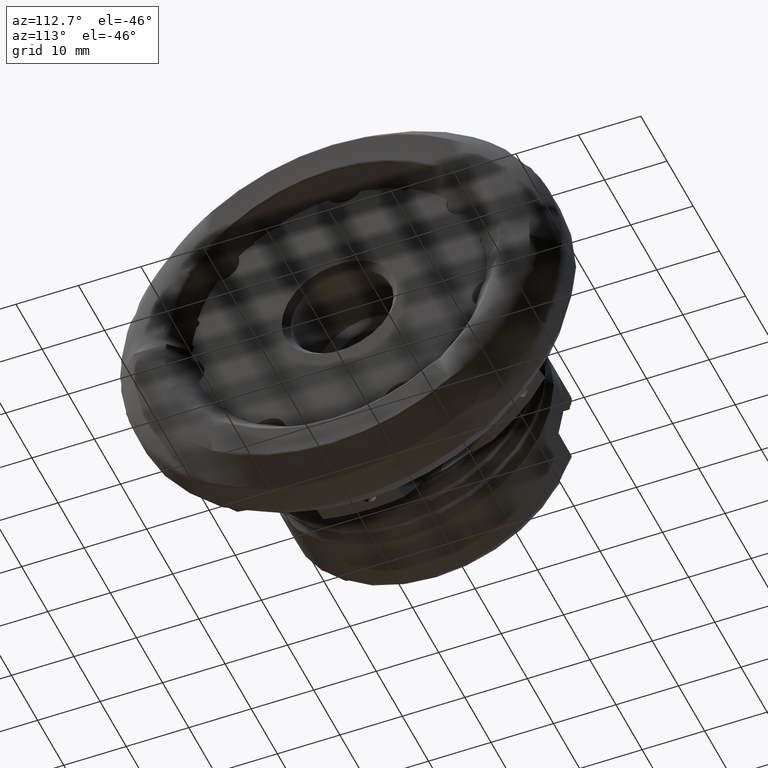
[diagram: clean part render]
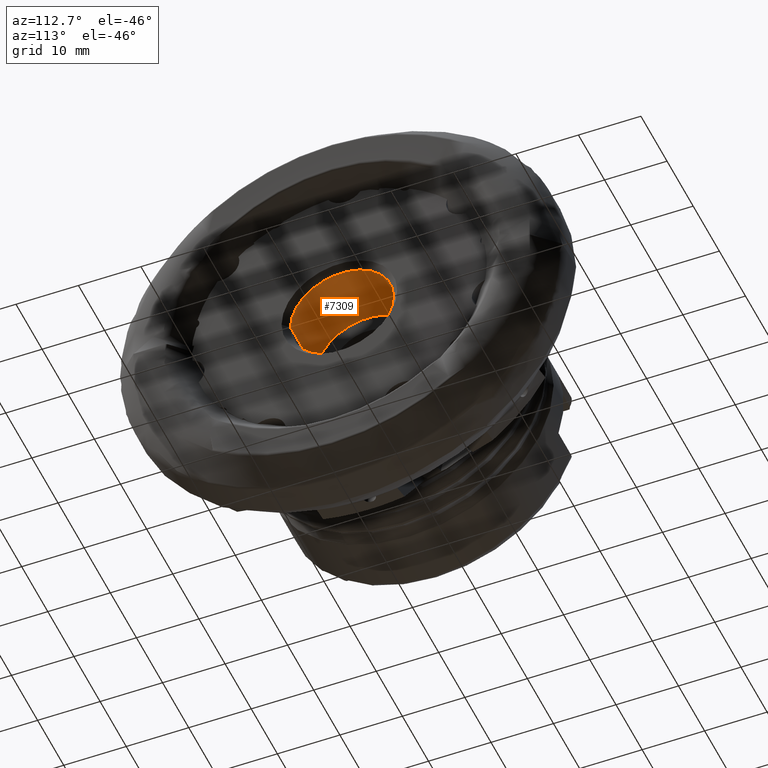
[diagram: same view with one face highlighted and labeled with its STEP entity id]
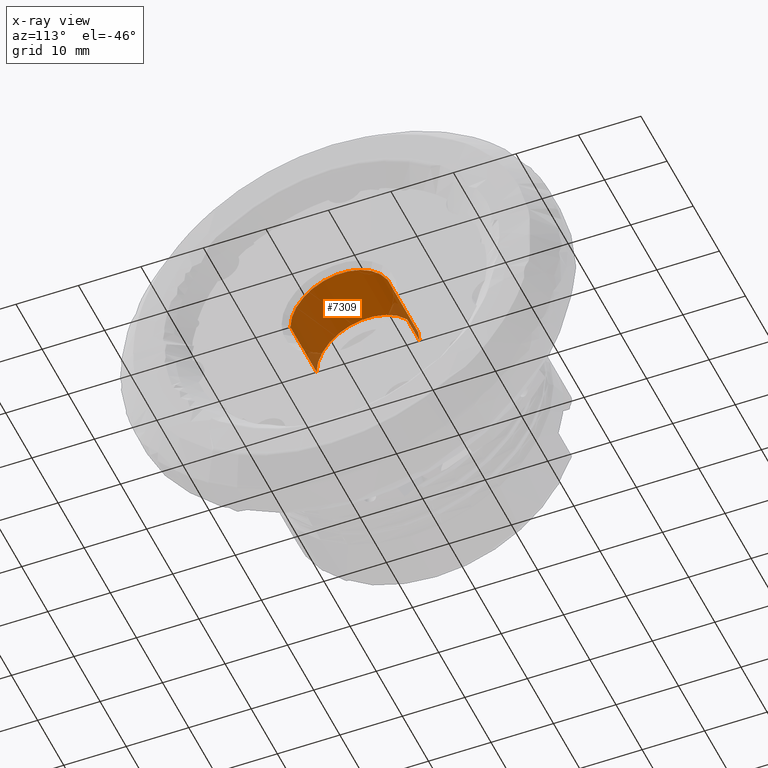
[diagram: x-ray of the same camera — body ghosted, the highlighted face saturated]
A machine part, auxiliary view. The second image highlights one B-rep face of the part: STEP entity #7309.
The next image is the same camera in x-ray: the body ghosted, the highlighted face saturated — about 6% of this face is hidden behind the body in this view.
In plain terms, the highlighted cylindrical surface (partial cylindrical patch) has radius 8.25 mm, axis along (1, 0, -0).
Its self-contained STEP definition (entity closure, byte-faithful):
#322 = CYLINDRICAL_SURFACE ( 'NONE', #4939, 8.250000000000000000 ) ;
#769 = EDGE_CURVE ( 'Kante60', #7443, #6157, #840, .T. ) ;
#840 = CIRCLE ( 'NONE', #11418, 8.250000000000000000 ) ;
#2269 = EDGE_CURVE ( 'Kante13', #7914, #11326, #2501, .T. ) ;
#2422 = EDGE_CURVE ( 'NONE', #11326, #6157, #3287, .T. ) ;
#2480 = EDGE_LOOP ( 'NONE', ( #9847, #9303, #6027, #4456 ) ) ;
#2501 = CIRCLE ( 'NONE', #7041, 8.250000000000000000 ) ;
#2941 = CARTESIAN_POINT ( 'NONE',  ( -3.000000000000000000, 8.250000000000000000, 0.0000000000000000000 ) ) ;
#2981 = DIRECTION ( 'NONE',  ( 1.000000000000000000, 1.653279061886031000E-016, -0.0000000000000000000 ) ) ;
#3287 = LINE ( 'NONE', #6094, #10955 ) ;
#3786 = DIRECTION ( 'NONE',  ( 1.000000000000000000, 1.653279061886031000E-016, -0.0000000000000000000 ) ) ;
#4021 = DIRECTION ( 'NONE',  ( 1.000000000000000000, 1.653279061886031000E-016, -0.0000000000000000000 ) ) ;
#4456 = ORIENTED_EDGE ( 'NONE', *, *, #769, .T. ) ;
#4636 = LINE ( 'NONE', #10783, #10264 ) ;
#4939 = AXIS2_PLACEMENT_3D ( 'NONE', #11675, #8718, #12689 ) ;
#5449 = EDGE_CURVE ( 'NONE', #7914, #7443, #4636, .T. ) ;
#6027 = ORIENTED_EDGE ( 'NONE', *, *, #5449, .T. ) ;
#6048 = DIRECTION ( 'NONE',  ( 1.000000000000000000, 1.653279061886031000E-016, -0.0000000000000000000 ) ) ;
#6094 = CARTESIAN_POINT ( 'NONE',  ( 4.965934880675721200E-016, -8.250000000000000000, 1.010333609296566500E-015 ) ) ;
#6157 = VERTEX_POINT ( 'NONE', #10075 ) ;
#7041 = AXIS2_PLACEMENT_3D ( 'NONE', #10012, #4021, #11013 ) ;
#7309 = ADVANCED_FACE ( 'NONE', ( #10951 ), #322, .F. ) ;
#7443 = VERTEX_POINT ( 'NONE', #2941 ) ;
#7914 = VERTEX_POINT ( 'NONE', #10800 ) ;
#8718 = DIRECTION ( 'NONE',  ( 1.000000000000000000, 1.653279061886031000E-016, -0.0000000000000000000 ) ) ;
#8963 = CARTESIAN_POINT ( 'NONE',  ( -2.999999999999998700, -4.959837185658090100E-016, 0.0000000000000000000 ) ) ;
#9256 = CARTESIAN_POINT ( 'NONE',  ( -13.00000000000000000, -8.250000000000001800, 1.010333609296566700E-015 ) ) ;
#9303 = ORIENTED_EDGE ( 'NONE', *, *, #2269, .F. ) ;
#9847 = ORIENTED_EDGE ( 'NONE', *, *, #2422, .F. ) ;
#9957 = DIRECTION ( 'NONE',  ( -1.577021341797097300E-016, 1.000000000000000000, 0.0000000000000000000 ) ) ;
#10012 = CARTESIAN_POINT ( 'NONE',  ( -13.00000000000000200, -2.149262780451840200E-015, 0.0000000000000000000 ) ) ;
#10075 = CARTESIAN_POINT ( 'NONE',  ( -2.999999999999997300, -8.250000000000000000, 1.071565949253933900E-015 ) ) ;
#10264 = VECTOR ( 'NONE', #3786, 1000.000000000000000 ) ;
#10783 = CARTESIAN_POINT ( 'NONE',  ( -2.231316964044379300E-015, 8.250000000000000000, 0.0000000000000000000 ) ) ;
#10800 = CARTESIAN_POINT ( 'NONE',  ( -13.00000000000000400, 8.249999999999998200, 0.0000000000000000000 ) ) ;
#10951 = FACE_OUTER_BOUND ( 'NONE', #2480, .T. ) ;
#10955 = VECTOR ( 'NONE', #6048, 1000.000000000000000 ) ;
#11013 = DIRECTION ( 'NONE',  ( -2.102695122396129900E-016, 1.000000000000000000, 0.0000000000000000000 ) ) ;
#11326 = VERTEX_POINT ( 'NONE', #9256 ) ;
#11418 = AXIS2_PLACEMENT_3D ( 'NONE', #8963, #2981, #9957 ) ;
#11675 = CARTESIAN_POINT ( 'NONE',  ( -8.673617379884035500E-016, 0.0000000000000000000, 0.0000000000000000000 ) ) ;
#12689 = DIRECTION ( 'NONE',  ( -1.653279061886031300E-016, 1.000000000000000000, 0.0000000000000000000 ) ) ;